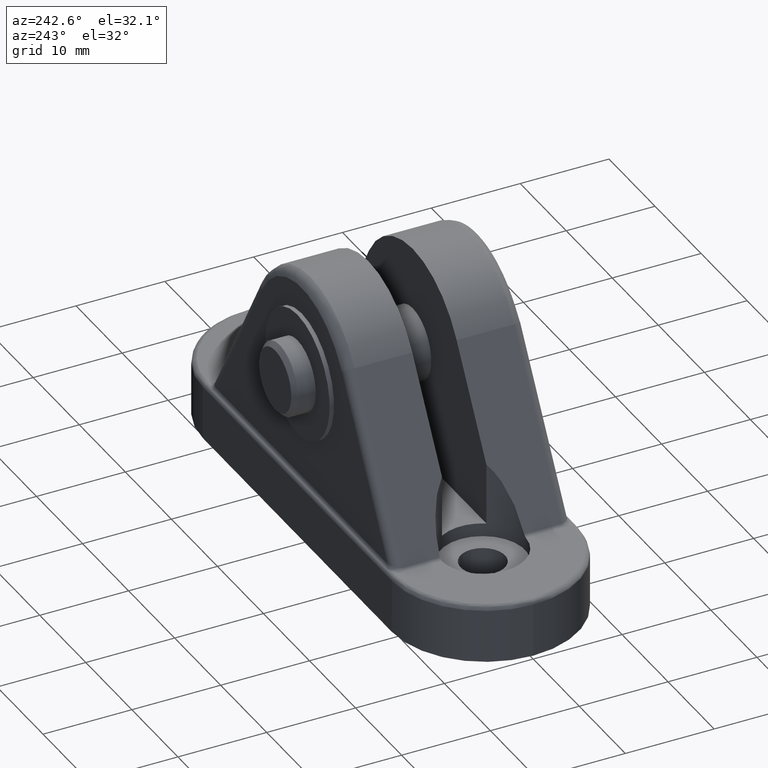
[diagram: clean part render]
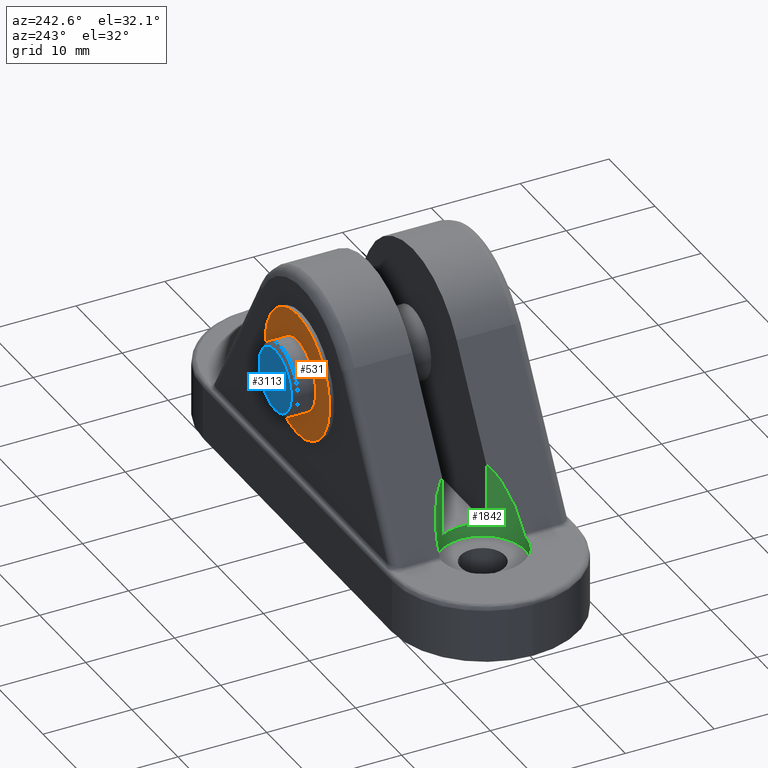
[diagram: same view with three faces highlighted in distinct colors, each labeled with its STEP entity id]
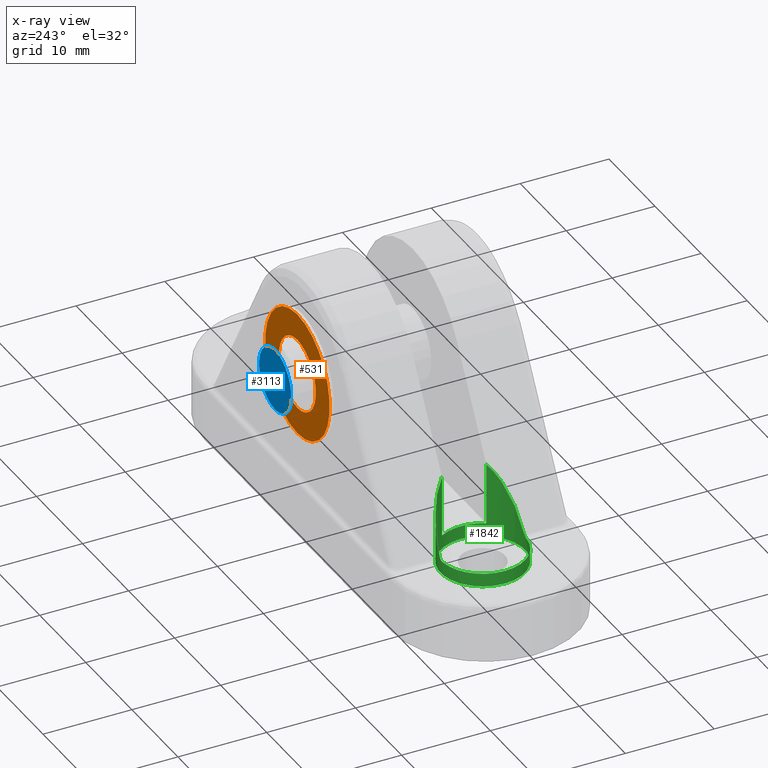
[diagram: x-ray of the same camera — body ghosted, the three highlighted faces saturated]
A machine part, auxiliary view with three faces highlighted in distinct colors.
The next image is the same camera in x-ray (body ghosted, the three faces saturated) — at least one of them is partly hidden behind the body in this view.
Their STEP definitions:

[orange] entity #531 — the highlighted planar face has unit normal (0, 1, 0).
#456=CARTESIAN_POINT('',(2.239650E-014,21.0,26.0));
#457=VERTEX_POINT('',#456);
#458=CARTESIAN_POINT('',(-7.105427E-015,20.999999999999996,12.0));
#459=VERTEX_POINT('',#458);
#460=CARTESIAN_POINT('',(7.105427E-015,21.0,19.0));
#461=DIRECTION('',(0.0,1.0,-6.123234E-017));
#462=DIRECTION('',(-2.184439E-015,-6.123234E-017,-1.0));
#463=AXIS2_PLACEMENT_3D('',#460,#461,#462);
#464=CIRCLE('',#463,7.0);
#465=EDGE_CURVE('',#457,#459,#464,.T.);
#467=CARTESIAN_POINT('',(7.105427E-015,21.0,19.0));
#468=DIRECTION('',(0.0,1.0,-6.123234E-017));
#469=DIRECTION('',(-2.184439E-015,-6.123234E-017,-1.0));
#470=AXIS2_PLACEMENT_3D('',#467,#468,#469);
#471=CIRCLE('',#470,7.0);
#472=EDGE_CURVE('',#459,#457,#471,.T.);
#502=CARTESIAN_POINT('',(8.400061746601793,21.0,27.400061746594666));
#503=DIRECTION('',(0.0,1.0,0.0));
#504=DIRECTION('',(0.0,0.0,-1.0));
#505=AXIS2_PLACEMENT_3D('',#502,#503,#504);
#506=PLANE('',#505);
#507=ORIENTED_EDGE('',*,*,#472,.T.);
#508=ORIENTED_EDGE('',*,*,#465,.T.);
#509=EDGE_LOOP('',(#507,#508));
#510=FACE_OUTER_BOUND('',#509,.T.);
#511=CARTESIAN_POINT('',(0.0,21.0,15.0));
#512=VERTEX_POINT('',#511);
#513=CARTESIAN_POINT('',(1.584318E-014,21.0,23.0));
#514=VERTEX_POINT('',#513);
#515=CARTESIAN_POINT('',(7.105427E-015,21.0,19.0));
#516=DIRECTION('',(0.0,-1.0,6.123234E-017));
#517=DIRECTION('',(-2.184439E-015,-6.123234E-017,-1.0));
#518=AXIS2_PLACEMENT_3D('',#515,#516,#517);
#519=CIRCLE('',#518,4.0);
#520=EDGE_CURVE('',#512,#514,#519,.T.);
#521=ORIENTED_EDGE('',*,*,#520,.T.);
#522=CARTESIAN_POINT('',(7.105427E-015,21.0,19.0));
#523=DIRECTION('',(0.0,-1.0,6.123234E-017));
#524=DIRECTION('',(-2.184439E-015,-6.123234E-017,-1.0));
#525=AXIS2_PLACEMENT_3D('',#522,#523,#524);
#526=CIRCLE('',#525,4.0);
#527=EDGE_CURVE('',#514,#512,#526,.T.);
#528=ORIENTED_EDGE('',*,*,#527,.T.);
#529=EDGE_LOOP('',(#521,#528));
#530=FACE_BOUND('',#529,.T.);
#531=ADVANCED_FACE('',(#510,#530),#506,.T.);

[blue] entity #3113 — the highlighted planar face has unit normal (0, 1, 0).
#3088=CARTESIAN_POINT('',(-4.800061746577789,23.500000000000000,14.199938253422225));
#3089=DIRECTION('',(0.0,1.0,0.0));
#3090=DIRECTION('',(0.0,0.0,1.0));
#3091=AXIS2_PLACEMENT_3D('',#3088,#3089,#3090);
#3092=PLANE('',#3091);
#3093=CARTESIAN_POINT('',(1.421085E-014,23.500000000000000,22.500000000000007));
#3094=VERTEX_POINT('',#3093);
#3095=CARTESIAN_POINT('',(-5.401085E-016,23.500000000000000,15.500000000000005));
#3096=VERTEX_POINT('',#3095);
#3097=CARTESIAN_POINT('',(7.105427E-015,23.500000000000000,19.000000000000007));
#3098=DIRECTION('',(0.0,1.0,-6.123234E-017));
#3099=DIRECTION('',(2.184439E-015,6.123234E-017,1.0));
#3100=AXIS2_PLACEMENT_3D('',#3097,#3098,#3099);
#3101=CIRCLE('',#3100,3.500000000000000);
#3102=EDGE_CURVE('',#3094,#3096,#3101,.T.);
#3103=ORIENTED_EDGE('',*,*,#3102,.T.);
#3104=CARTESIAN_POINT('',(7.105427E-015,23.500000000000000,19.000000000000007));
#3105=DIRECTION('',(0.0,1.0,-6.123234E-017));
#3106=DIRECTION('',(2.184439E-015,6.123234E-017,1.0));
#3107=AXIS2_PLACEMENT_3D('',#3104,#3105,#3106);
#3108=CIRCLE('',#3107,3.500000000000000);
#3109=EDGE_CURVE('',#3096,#3094,#3108,.T.);
#3110=ORIENTED_EDGE('',*,*,#3109,.T.);
#3111=EDGE_LOOP('',(#3103,#3110));
#3112=FACE_OUTER_BOUND('',#3111,.T.);
#3113=ADVANCED_FACE('',(#3112),#3092,.T.);

[green] entity #1842 — the highlighted cylindrical surface (bore or boss wall) has radius 4.75 mm, axis along (0, 0, 1).
#7=CARTESIAN_POINT('',(-15.961126394649106,8.0,13.441203929308436));
#8=VERTEX_POINT('',#7);
#42=CARTESIAN_POINT('',(-15.961126394649121,7.999999999999998,6.500000000000043));
#43=VERTEX_POINT('',#42);
#50=CARTESIAN_POINT('',(-15.961126394649114,7.999999999999998,6.500000000000043));
#51=DIRECTION('',(0.0,0.0,1.0));
#52=VECTOR('',#51,6.941203929308394);
#53=LINE('',#50,#52);
#54=EDGE_CURVE('',#43,#8,#53,.T.);
#184=CARTESIAN_POINT('',(-15.961126394649121,13.0,6.500000000000043));
#185=VERTEX_POINT('',#184);
#186=CARTESIAN_POINT('',(-20.0,10.499999999999988,6.500000000000057));
#187=DIRECTION('',(1.336409E-015,6.123234E-017,1.0));
#188=DIRECTION('',(-1.0,8.183146E-032,1.336409E-015));
#189=AXIS2_PLACEMENT_3D('',#186,#187,#188);
#190=CIRCLE('',#189,4.750000000000000);
#191=EDGE_CURVE('',#43,#185,#190,.T.);
#326=CARTESIAN_POINT('',(-24.750000000000000,10.499999999999988,5.000000000000071));
#327=VERTEX_POINT('',#326);
#328=CARTESIAN_POINT('',(-15.250000000000000,10.499999999999988,5.000000000000065));
#329=VERTEX_POINT('',#328);
#330=CARTESIAN_POINT('',(-20.0,10.499999999999988,5.000000000000071));
#331=DIRECTION('',(1.336409E-015,6.123234E-017,1.0));
#332=DIRECTION('',(-1.0,8.183146E-032,1.336409E-015));
#333=AXIS2_PLACEMENT_3D('',#330,#331,#332);
#334=CIRCLE('',#333,4.750000000000000);
#335=EDGE_CURVE('',#327,#329,#334,.T.);
#337=CARTESIAN_POINT('',(-20.0,10.499999999999988,5.000000000000071));
#338=DIRECTION('',(1.336409E-015,6.123234E-017,1.0));
#339=DIRECTION('',(-1.0,8.183146E-032,1.336409E-015));
#340=AXIS2_PLACEMENT_3D('',#337,#338,#339);
#341=CIRCLE('',#340,4.750000000000000);
#342=EDGE_CURVE('',#329,#327,#341,.T.);
#537=CARTESIAN_POINT('',(-15.961126394649121,12.999999999999998,13.441203929308415));
#538=VERTEX_POINT('',#537);
#539=CARTESIAN_POINT('',(-15.961126394649119,13.0,13.441203929308415));
#540=DIRECTION('',(0.0,0.0,-1.0));
#541=VECTOR('',#540,6.941203929308372);
#542=LINE('',#539,#541);
#543=EDGE_CURVE('',#538,#185,#542,.T.);
#1767=CARTESIAN_POINT('',(-19.999999999999957,10.499999999999989,39.500080108642628));
#1768=DIRECTION('',(1.336409E-015,6.123234E-017,1.0));
#1769=DIRECTION('',(-1.0,8.183146E-032,1.336409E-015));
#1770=AXIS2_PLACEMENT_3D('',#1767,#1768,#1769);
#1771=CYLINDRICAL_SURFACE('',#1770,4.750000000000000);
#1772=ORIENTED_EDGE('',*,*,#342,.F.);
#1773=ORIENTED_EDGE('',*,*,#335,.F.);
#1774=CARTESIAN_POINT('',(-24.750000000000000,10.499999999999988,6.500000000000057));
#1775=VERTEX_POINT('',#1774);
#1776=CARTESIAN_POINT('',(-24.750000000000000,10.499999999999988,6.500000000000057));
#1777=DIRECTION('',(0.0,0.0,-1.0));
#1778=VECTOR('',#1777,1.499999999999986);
#1779=LINE('',#1776,#1778);
#1780=EDGE_CURVE('',#1775,#327,#1779,.T.);
#1781=ORIENTED_EDGE('',*,*,#1780,.F.);
#1782=CARTESIAN_POINT('',(-20.287548681674998,5.758711593283206,6.500000000000043));
#1783=VERTEX_POINT('',#1782);
#1784=CARTESIAN_POINT('',(-20.0,10.499999999999988,6.500000000000057));
#1785=DIRECTION('',(1.336409E-015,6.123234E-017,1.0));
#1786=DIRECTION('',(-1.0,8.183146E-032,1.336409E-015));
#1787=AXIS2_PLACEMENT_3D('',#1784,#1785,#1786);
#1788=CIRCLE('',#1787,4.750000000000000);
#1789=EDGE_CURVE('',#1775,#1783,#1788,.T.);
#1790=ORIENTED_EDGE('',*,*,#1789,.T.);
#1791=CARTESIAN_POINT('',(-19.855384119371344,5.752201958057807,6.748536700314205));
#1792=VERTEX_POINT('',#1791);
#1793=CARTESIAN_POINT('',(-19.855384119371344,5.752201958057807,6.748536700314205));
#1794=CARTESIAN_POINT('',(-19.895390547407771,5.750983379514620,6.679781695177098));
#1795=CARTESIAN_POINT('',(-19.994537776533065,5.748847352091101,6.576870889134327));
#1796=CARTESIAN_POINT('',(-20.157799024379784,5.751925113340102,6.510184837914053));
#1797=CARTESIAN_POINT('',(-20.251536438957373,5.756527530212303,6.500000000000043));
#1798=CARTESIAN_POINT('',(-20.287548681674998,5.758711593283206,6.500000000000043));
#1799=B_SPLINE_CURVE_WITH_KNOTS('',3,(#1793,#1794,#1795,#1796,#1797,#1798),.UNSPECIFIED.,.F.,.U.,(4,1,1,4),(0.0,0.240956474710261,0.413567261719016,0.521992594180620),.UNSPECIFIED.);
#1800=EDGE_CURVE('',#1792,#1783,#1799,.T.);
#1801=ORIENTED_EDGE('',*,*,#1800,.F.);
#1802=CARTESIAN_POINT('',(-20.0,10.499999999999988,6.500000000000014));
#1803=DIRECTION('',(-0.864329124607305,3.079537E-017,0.502926599371688));
#1804=DIRECTION('',(0.502926599371688,5.292489E-017,0.864329124607305));
#1805=AXIS2_PLACEMENT_3D('',#1802,#1803,#1804);
#1806=ELLIPSE('',#1805,9.444718187374150,4.750000000000000);
#1807=EDGE_CURVE('',#1792,#8,#1806,.T.);
#1808=ORIENTED_EDGE('',*,*,#1807,.T.);
#1809=ORIENTED_EDGE('',*,*,#54,.F.);
#1810=ORIENTED_EDGE('',*,*,#191,.T.);
#1811=ORIENTED_EDGE('',*,*,#543,.F.);
#1812=CARTESIAN_POINT('',(-19.855384119371344,15.247798041942168,6.748536700314205));
#1813=VERTEX_POINT('',#1812);
#1814=CARTESIAN_POINT('',(-20.0,10.499999999999988,6.500000000000014));
#1815=DIRECTION('',(-0.864329124607305,3.079537E-017,0.502926599371688));
#1816=DIRECTION('',(0.502926599371688,5.292489E-017,0.864329124607305));
#1817=AXIS2_PLACEMENT_3D('',#1814,#1815,#1816);
#1818=ELLIPSE('',#1817,9.444718187374150,4.750000000000000);
#1819=EDGE_CURVE('',#538,#1813,#1818,.T.);
#1820=ORIENTED_EDGE('',*,*,#1819,.T.);
#1821=CARTESIAN_POINT('',(-20.287548681674998,15.241288406716770,6.500000000000043));
#1822=VERTEX_POINT('',#1821);
#1823=CARTESIAN_POINT('',(-19.855384119371344,15.247798041942168,6.748536700314205));
#1824=CARTESIAN_POINT('',(-19.895390547407771,15.249016620485353,6.679781695177098));
#1825=CARTESIAN_POINT('',(-19.994537776533079,15.251152647908878,6.576870889134341));
#1826=CARTESIAN_POINT('',(-20.157799024379777,15.248074886659873,6.510184837914025));
#1827=CARTESIAN_POINT('',(-20.251536438957373,15.243472469787674,6.500000000000043));
#1828=CARTESIAN_POINT('',(-20.287548681674998,15.241288406716770,6.500000000000043));
#1829=B_SPLINE_CURVE_WITH_KNOTS('',3,(#1823,#1824,#1825,#1826,#1827,#1828),.UNSPECIFIED.,.F.,.U.,(4,1,1,4),(0.0,0.240956474710261,0.413567261719026,0.521992594180620),.UNSPECIFIED.);
#1830=EDGE_CURVE('',#1813,#1822,#1829,.T.);
#1831=ORIENTED_EDGE('',*,*,#1830,.T.);
#1832=CARTESIAN_POINT('',(-20.0,10.499999999999988,6.500000000000057));
#1833=DIRECTION('',(1.336409E-015,6.123234E-017,1.0));
#1834=DIRECTION('',(-1.0,8.183146E-032,1.336409E-015));
#1835=AXIS2_PLACEMENT_3D('',#1832,#1833,#1834);
#1836=CIRCLE('',#1835,4.750000000000000);
#1837=EDGE_CURVE('',#1822,#1775,#1836,.T.);
#1838=ORIENTED_EDGE('',*,*,#1837,.T.);
#1839=ORIENTED_EDGE('',*,*,#1780,.T.);
#1840=EDGE_LOOP('',(#1772,#1773,#1781,#1790,#1801,#1808,#1809,#1810,#1811,#1820,#1831,#1838,#1839));
#1841=FACE_OUTER_BOUND('',#1840,.T.);
#1842=ADVANCED_FACE('',(#1841),#1771,.F.);